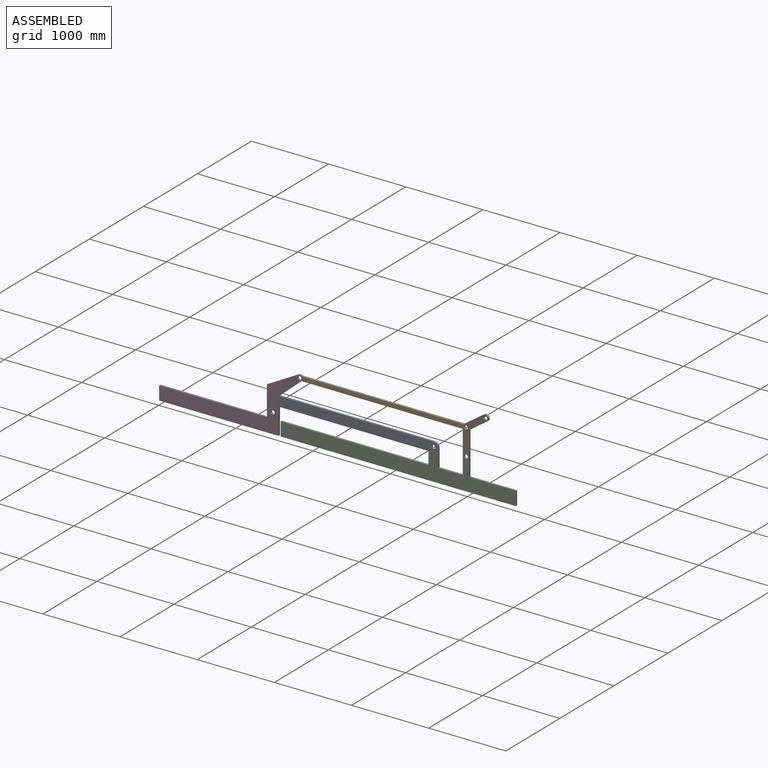
[diagram: assembled view]
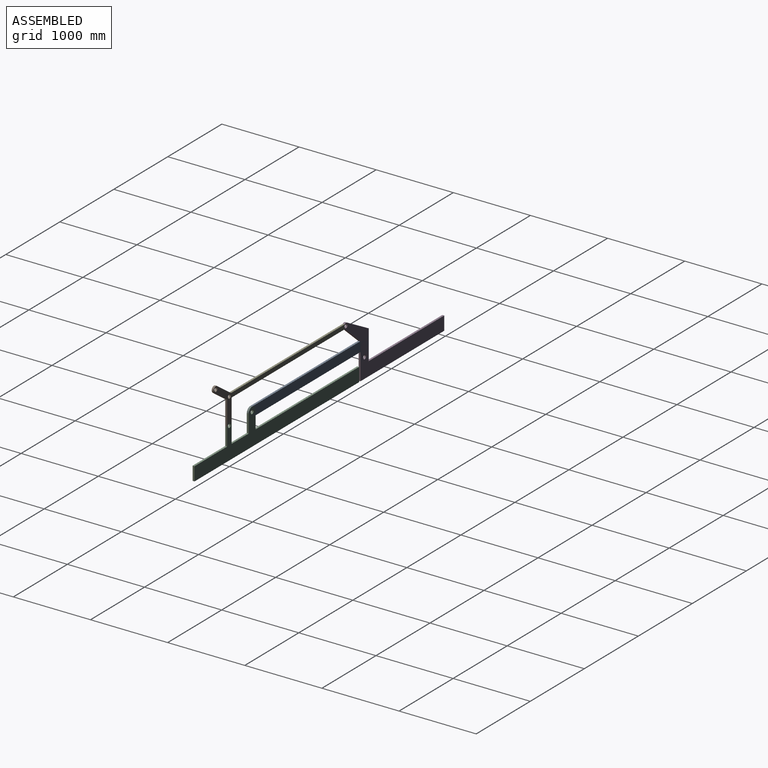
[diagram: assembled view, second angle]
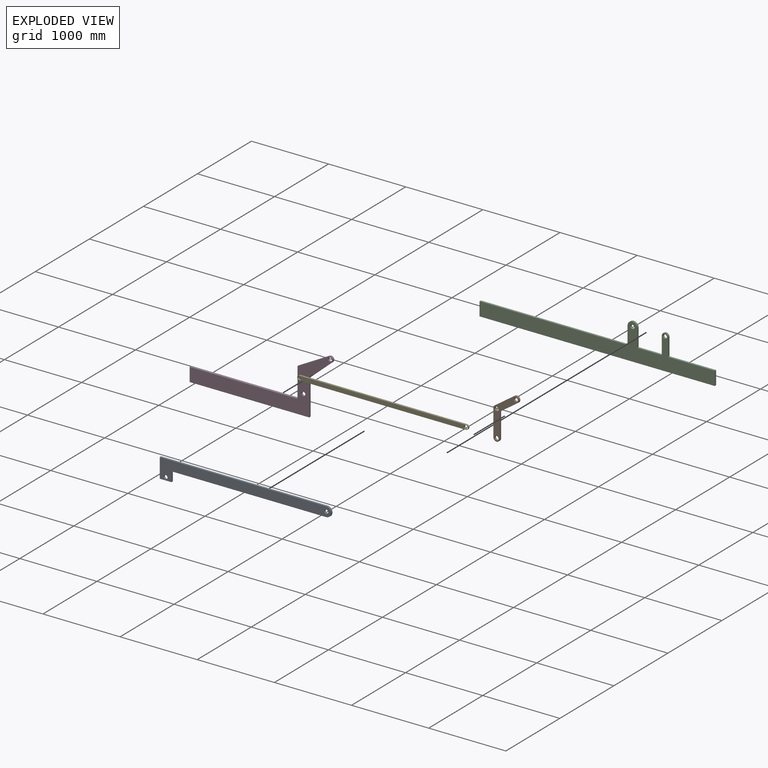
[diagram: exploded view]
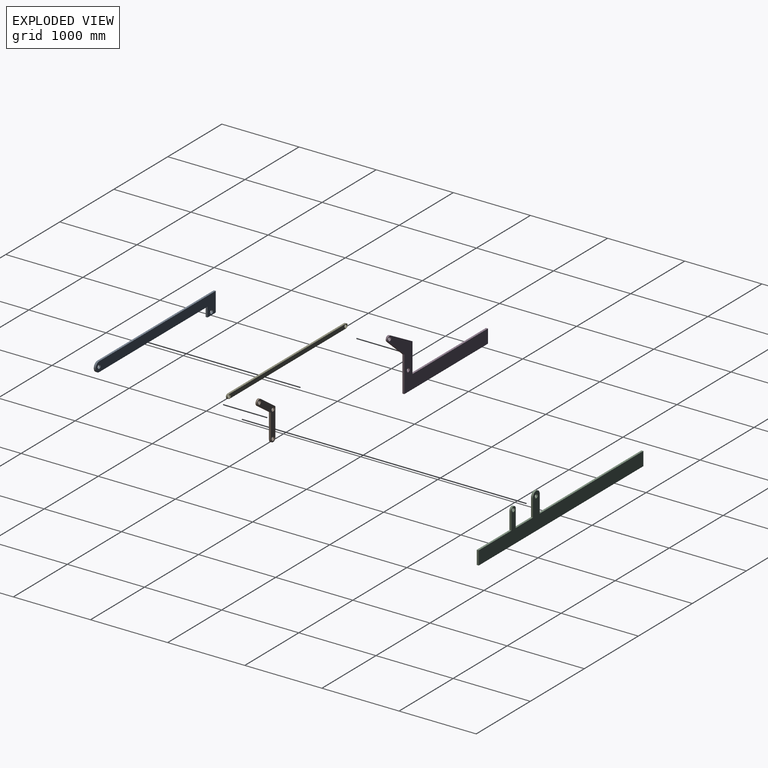
[diagram: exploded view, second angle]
ASSEMBLY  parts=5 mates=5
PART A: 10 faces, bbox 2222.5x25.4x254 mm
  f0: plane 127x25.4mm, normal (1,0,0), area 3225.8mm2, adj f1,f7,f8,f9
  f1: plane 2006.6x25.4mm, normal (0,0,-1), area 50967.6mm2, adj f0,f2,f8,f9
  f2: cylinder r=63.5mm len=127mm, axis (0,1,0), area 5067.1mm2, adj f1,f3,f8,f9
  f3: plane 2159x25.4mm, normal (0,0,1), area 54838.6mm2, adj f2,f4,f8,f9
  f4: plane 254x25.4mm, normal (-1,0,0), area 6451.6mm2, adj f3,f7,f8,f9
  f5: cylinder r=25.4mm len=50.8mm, axis (0,1,0), area 4053.7mm2, adj f8,f9
  f6: cylinder r=25.4mm len=50.8mm, axis (0,1,0), area 4053.7mm2, adj f8,f9
  f7: plane 152.4x25.4mm, normal (0,0,-1), area 3871mm2, adj f0,f4,f8,f9
  f8: plane 2222.5x254mm, normal (0,-1,0), area 295828mm2, adj f0,f1,f2,f3,f4,f5,f6,f7
  f9: plane 2222.5x254mm, normal (0,1,0), area 295828mm2, adj f0,f1,f2,f3,f4,f5,f6,f7
PART B: 11 faces, bbox 332.2x25.4x600.3 mm
  f0: cylinder r=41.27mm len=82.55mm, axis (0,1,0), area 3293.6mm2, adj f1,f8,f9,f10
  f1: plane 321.41x25.4mm, normal (1,0,0), area 8163.9mm2, adj f0,f2,f9,f10
  f2: plane 232.08x162.5mm, normal (0.57,0,-0.82), area 7196.2mm2, adj f1,f3,f9,f10
  f3: cylinder r=41.27mm len=75.09mm, axis (0,1,0), area 3293.6mm2, adj f2,f4,f9,f10
  f4: plane 267.28x187.15mm, normal (-0.57,0,0.82), area 8287.7mm2, adj f3,f8,f9,f10
  f5: cylinder r=25.4mm len=50.8mm, axis (0,1,0), area 4053.7mm2, adj f9,f10
  f6: cylinder r=25.4mm len=50.8mm, axis (0,1,0), area 4053.7mm2, adj f9,f10
  f7: cylinder r=25.4mm len=50.8mm, axis (0,1,0), area 4053.7mm2, adj f9,f10
  f8: plane 364.39x25.4mm, normal (-1,0,0), area 9255.4mm2, adj f0,f4,f9,f10
  f9: plane 600.28x332.23mm, normal (0,-1,0), area 52739.2mm2, adj f0,f1,f2,f3,f4,f5,f6,f7
  f10: plane 600.28x332.23mm, normal (0,1,0), area 52739.2mm2, adj f0,f1,f2,f3,f4,f5,f6,f7
PART C: 16 faces, bbox 3048x25.4x469.9 mm
  f0: plane 228.6x25.4mm, normal (1,0,0), area 5806.4mm2, adj f1,f12,f14,f15
  f1: cylinder r=41.27mm len=82.55mm, axis (0,1,0), area 3293.6mm2, adj f0,f2,f14,f15
  f2: plane 228.6x25.4mm, normal (-1,0,0), area 5806.4mm2, adj f1,f3,f14,f15
  f3: plane 316.81x25.4mm, normal (0,0,1), area 8047mm2, adj f2,f4,f14,f15
  f4: plane 228.6x25.4mm, normal (1,0,0), area 5806.4mm2, adj f3,f5,f14,f15
  f5: cylinder r=63.5mm len=127mm, axis (0,1,0), area 5067.1mm2, adj f4,f6,f14,f15
  f6: plane 228.6x25.4mm, normal (-1,0,0), area 5806.4mm2, adj f5,f7,f14,f15
  f7: plane 1917.7x25.4mm, normal (0,0,1), area 48709.6mm2, adj f6,f8,f14,f15
  f8: plane 177.8x25.4mm, normal (-1,0,0), area 4516.1mm2, adj f7,f9,f14,f15
  f9: plane 3048x25.4mm, normal (0,0,-1), area 77419.2mm2, adj f8,f10,f14,f15
  f10: plane 177.8x25.4mm, normal (1,0,0), area 4516.1mm2, adj f9,f12,f14,f15
  f11: cylinder r=25.4mm len=50.8mm, axis (0,1,0), area 4053.7mm2, adj f14,f15
  f12: plane 603.94x25.4mm, normal (0,0,1), area 15340mm2, adj f0,f10,f14,f15
  f13: cylinder r=25.4mm len=50.8mm, axis (0,1,0), area 4053.7mm2, adj f14,f15
  f14: plane 3048x469.9mm, normal (0,-1,0), area 594793.8mm2, adj f0,f1,f2,f3,f4,f5,f6,f7
  f15: plane 3048x469.9mm, normal (0,1,0), area 594793.8mm2, adj f0,f1,f2,f3,f4,f5,f6,f7
PART D: 12 faces, bbox 1856.7x25.4x787.4 mm
  f0: plane 403.24x221.59mm, normal (-0.48,0,0.88), area 11686.9mm2, adj f1,f7,f8,f9
  f1: plane 383.3x25.4mm, normal (-1,0,0), area 9735.8mm2, adj f0,f8,f9,f11
  f2: plane 1549.4x25.4mm, normal (0,0,-1), area 39354.8mm2, adj f3,f8,f9,f10
  f3: plane 462.92x25.4mm, normal (1,0,0), area 11758.1mm2, adj f2,f4,f8,f9
  f4: plane 294.29x257.72mm, normal (0.66,0,-0.75), area 9936.1mm2, adj f3,f7,f8,f9
  f5: cylinder r=25.4mm len=50.8mm, axis (0,1,0), area 4053.7mm2, adj f8,f9
  f6: cylinder r=25.4mm len=50.8mm, axis (0,1,0), area 4053.7mm2, adj f8,f9
  f7: cylinder r=38.1mm len=66.76mm, axis (0,1,0), area 2830.5mm2, adj f0,f4,f8,f9
  f8: plane 1856.69x787.4mm, normal (0,-1,0), area 375739.5mm2, adj f0,f1,f2,f3,f4,f5,f6,f7
  f9: plane 1856.69x787.4mm, normal (0,1,0), area 375739.5mm2, adj f0,f1,f2,f3,f4,f5,f6,f7
  f10: plane 177.8x25.4mm, normal (-1,0,0), area 4516.1mm2, adj f2,f8,f9,f11
  f11: plane 1397x25.4mm, normal (0,0,1), area 35483.8mm2, adj f1,f8,f9,f10
PART E: 8 faces, bbox 2216.2x25.4x57.2 mm
  f0: plane 2159x25.4mm, normal (0,0,-1), area 54838.6mm2, adj f1,f5,f6,f7
  f1: cylinder r=28.57mm len=57.15mm, axis (0,1,0), area 2280.2mm2, adj f0,f2,f6,f7
  f2: plane 2159x25.4mm, normal (0,0,1), area 54838.6mm2, adj f1,f5,f6,f7
  f3: cylinder r=25.4mm len=50.8mm, axis (0,1,0), area 4053.7mm2, adj f6,f7
  f4: cylinder r=25.4mm len=50.8mm, axis (0,1,0), area 4053.7mm2, adj f6,f7
  f5: cylinder r=28.57mm len=57.15mm, axis (0,1,0), area 2280.2mm2, adj f0,f2,f6,f7
  f6: plane 2216.15x57.15mm, normal (0,-1,0), area 121898.4mm2, adj f0,f1,f2,f3,f4,f5
  f7: plane 2216.15x57.15mm, normal (0,1,0), area 121898.4mm2, adj f0,f1,f2,f3,f4,f5
PLACE A at identity
PLACE B rot(axis=(0,1,0),0deg) t=(0,0,0)mm
PLACE C at identity fixed
PLACE D at identity
PLACE E at identity
MATE revolute D.f5 <-> E.f3  axis (0,-1,0) through (-2159,-25.4,342.9)mm
MATE revolute C.f5 <-> A.f5  axis (0,-1,0) through (-421.59,-25.4,0)mm
MATE revolute C.f1 <-> B.f0  axis (0,-1,0) through (0,-25.4,0)mm
MATE revolute D.f6 <-> A.f6  axis (0,-1,0) through (-2504.39,-25.4,-152.4)mm
MATE revolute E.f1 <-> B.f6  axis (0,-1,0) through (0,-25.4,342.9)mm
